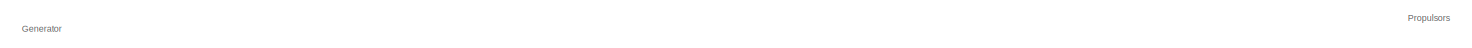
[diagram: root canvas - part 1/3, top left region]
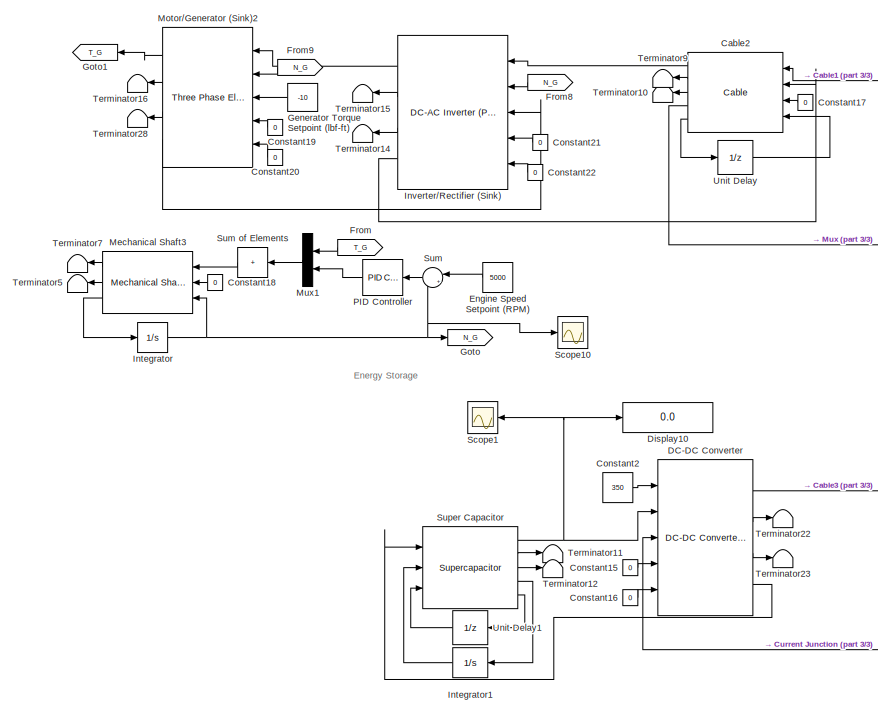
[diagram: root canvas - part 2/3, left side, full height]
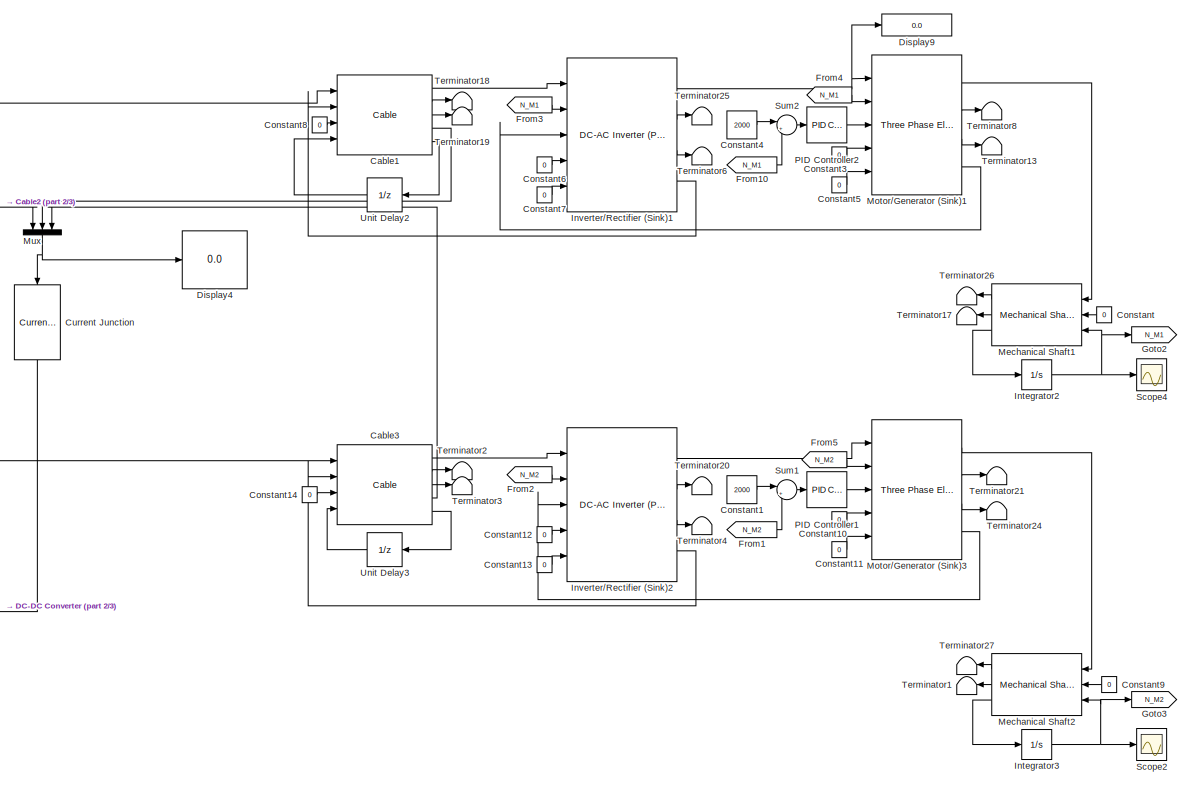
[diagram: root canvas - part 3/3, right side, full height]
MODEL slx_69a295819db7
KIND model
CONFIG AbsTol = auto
CONFIG EnableMultiTasking = off
CONFIG FixedStep = 0.02
CONFIG MaxStep = auto
CONFIG MinStep = auto
CONFIG RelTol = 1e-3
CONFIG SampleTimeConstraint = Unconstrained
CONFIG SolverName = FixedStepAuto
CONFIG StartTime = 0.0
CONFIG StopTime = 10
BLOCK [Reference] Cable1  REF=Lib_EMTAT/Components/Power Flow/Cable
  Ports = [4, 5]
  SourceBlock = Lib_EMTAT/Components/Power Flow/Cable
  SourceType = Cable
BLOCK [Reference] Cable2  REF=Lib_EMTAT/Components/Power Flow/Cable
  Ports = [4, 5]
  SourceBlock = Lib_EMTAT/Components/Power Flow/Cable
  SourceType = Cable
BLOCK [Reference] Cable3  REF=Lib_EMTAT/Components/Power Flow/Cable
  Ports = [4, 5]
  SourceBlock = Lib_EMTAT/Components/Power Flow/Cable
  SourceType = Cable
BLOCK [Constant] Constant
  Value = 0
BLOCK [Constant] Constant1
  Value = 2000
BLOCK [Constant] Constant10
  Value = 0
BLOCK [Constant] Constant11
  Value = 0
BLOCK [Constant] Constant12
  Value = 0
BLOCK [Constant] Constant13
  Value = 0
BLOCK [Constant] Constant14
  Value = 0
BLOCK [Constant] Constant15
  Value = 0
BLOCK [Constant] Constant16
  Value = 0
BLOCK [Constant] Constant17
  Value = 0
BLOCK [Constant] Constant18
  Value = 0
BLOCK [Constant] Constant19
  Value = 0
BLOCK [Constant] Constant2
  Value = 350
BLOCK [Constant] Constant20
  Value = 0
BLOCK [Constant] Constant21
  Value = 0
BLOCK [Constant] Constant22
  Value = 0
BLOCK [Constant] Constant3
  Value = 0
BLOCK [Constant] Constant4
  Value = 2000
BLOCK [Constant] Constant5
  Value = 0
BLOCK [Constant] Constant6
  Value = 0
BLOCK [Constant] Constant7
  Value = 0
BLOCK [Constant] Constant8
  Value = 0
BLOCK [Constant] Constant9
  Value = 0
BLOCK [Reference] Current Junction  REF=Lib_EMTAT/Components/Power Flow/Current Junction
  AttributesFormatString = Current Junction\nVersion: %<LibraryVersion>
  NameLocation = left
  Ports = [1, 1]
  SourceBlock = Lib_EMTAT/Components/Power Flow/Current Junction
  SourceType = Current Junction
BLOCK [Reference] DC-DC Converter  REF=Lib_EMTAT/Components/Power Flow/DC-DC Converter
(Power Loss Map)
(Set Output Voltage)
  Ports = [5, 4]
  SourceBlock = Lib_EMTAT/Components/Power Flow/DC-DC Converter\n(Power Loss Map)\n(Set Output Voltage)
  SourceType = DC-DC Converter (Power Loss Map) (Set Output Voltage)
BLOCK [Display] Display10
  Decimation = 1
  Ports = [1]
BLOCK [Display] Display4
  Decimation = 1
  Ports = [1]
BLOCK [Display] Display9
  Decimation = 1
  Ports = [1]
BLOCK [Constant] Engine Speed Setpoint (RPM)
  Value = 5000
BLOCK [From] From
  GotoTag = T_G
BLOCK [From] From1
  GotoTag = N_M2
BLOCK [From] From10
  GotoTag = N_M1
BLOCK [From] From2
  GotoTag = N_M2
BLOCK [From] From3
  GotoTag = N_M1
BLOCK [From] From4
  GotoTag = N_M1
BLOCK [From] From5
  GotoTag = N_M2
BLOCK [From] From8
  GotoTag = N_G
BLOCK [From] From9
  GotoTag = N_G
BLOCK [Constant] Generator Torque Setpoint (lbf-ft)
  Value = -10
BLOCK [Goto] Goto
  GotoTag = N_G
BLOCK [Goto] Goto1
  GotoTag = T_G
BLOCK [Goto] Goto2
  GotoTag = N_M1
BLOCK [Goto] Goto3
  GotoTag = N_M2
BLOCK [Integrator] Integrator
  InitialCondition = 5000
  Ports = [1, 1]
BLOCK [Integrator] Integrator1
  InitialCondition = 150
  Ports = [1, 1]
BLOCK [Integrator] Integrator2
  InitialCondition = 2000
  Ports = [1, 1]
BLOCK [Integrator] Integrator3
  InitialCondition = 2000
  Ports = [1, 1]
BLOCK [Reference] Inverter//Rectifier (Sink)  REF=Lib_EMTAT/Components/Power Flow/DC-AC Inverter (Power Loss Map)
  Ports = [5, 4]
  SourceBlock = Lib_EMTAT/Components/Power Flow/DC-AC Inverter (Power Loss Map)
  SourceType = DC-AC Inverter (Power Loss Map)
BLOCK [Reference] Inverter//Rectifier (Sink)1  REF=Lib_EMTAT/Components/Power Flow/DC-AC Inverter (Power Loss Map)
  Ports = [5, 4]
  SourceBlock = Lib_EMTAT/Components/Power Flow/DC-AC Inverter (Power Loss Map)
  SourceType = DC-AC Inverter (Power Loss Map)
BLOCK [Reference] Inverter//Rectifier (Sink)2  REF=Lib_EMTAT/Components/Power Flow/DC-AC Inverter (Power Loss Map)
  Ports = [5, 4]
  SourceBlock = Lib_EMTAT/Components/Power Flow/DC-AC Inverter (Power Loss Map)
  SourceType = DC-AC Inverter (Power Loss Map)
BLOCK [Reference] Mechanical Shaft1  REF=Lib_EMTAT/Components/Power Flow/Mechanical Shaft
  Ports = [3, 3]
  SourceBlock = Lib_EMTAT/Components/Power Flow/Mechanical Shaft
  SourceType = Mechanical Shaft
BLOCK [Reference] Mechanical Shaft2  REF=Lib_EMTAT/Components/Power Flow/Mechanical Shaft
  Ports = [3, 3]
  SourceBlock = Lib_EMTAT/Components/Power Flow/Mechanical Shaft
  SourceType = Mechanical Shaft
BLOCK [Reference] Mechanical Shaft3  REF=Lib_EMTAT/Components/Power Flow/Mechanical Shaft
  Ports = [3, 3]
  SourceBlock = Lib_EMTAT/Components/Power Flow/Mechanical Shaft
  SourceType = Mechanical Shaft
BLOCK [Reference] Motor//Generator (Sink)1  REF=Lib_EMTAT/Components/Power Flow/Three Phase Electric Machine
(Sink)
  Ports = [5, 4]
  SourceBlock = Lib_EMTAT/Components/Power Flow/Three Phase Electric Machine\n(Sink)
  SourceType = Three Phase Electric Machine (Sink)
BLOCK [Reference] Motor//Generator (Sink)2  REF=Lib_EMTAT/Components/Power Flow/Three Phase Electric Machine
(Sink)
  Ports = [5, 4]
  SourceBlock = Lib_EMTAT/Components/Power Flow/Three Phase Electric Machine\n(Sink)
  SourceType = Three Phase Electric Machine (Sink)
BLOCK [Reference] Motor//Generator (Sink)3  REF=Lib_EMTAT/Components/Power Flow/Three Phase Electric Machine
(Sink)
  Ports = [5, 4]
  SourceBlock = Lib_EMTAT/Components/Power Flow/Three Phase Electric Machine\n(Sink)
  SourceType = Three Phase Electric Machine (Sink)
BLOCK [Mux] Mux
  DisplayOption = bar
  Inputs = 3
  NameLocation = right
  Ports = [3, 1]
BLOCK [Mux] Mux1
  DisplayOption = bar
  Inputs = 2
  Ports = [2, 1]
BLOCK [Reference] PID Controller  REF=slpidlib/PID Controller
  Ports = [1, 1]
  SourceBlock = slpidlib/PID Controller
  SourceType = PID 1dof
BLOCK [Reference] PID Controller1  REF=slpidlib/PID Controller
  Ports = [1, 1]
  SourceBlock = slpidlib/PID Controller
  SourceType = PID 1dof
BLOCK [Reference] PID Controller2  REF=slpidlib/PID Controller
  Ports = [1, 1]
  SourceBlock = slpidlib/PID Controller
  SourceType = PID 1dof
BLOCK [Scope] Scope1
  Floating = off
  NumInputPorts = 1
  Ports = [1]
  ScopeSpecificationString = Simulink.scopes.TimeScopeBlockCfg('CurrentConfiguration', extmgr.ConfigurationSet(extmgr.Configuration('Core','General UI',true),extmgr.Configuration('Core','Source UI',true),extmgr.Configuration('Sources','WiredSimulink',true,'DataLoggingVariableName','ScopeData1'),extmgr.Configuration('Visuals','Time Domain',true,'SerializedDisplays',{struct('MinYLimReal','149.62129','MaxYLimReal','153.40837','Y...<+1421ch>
BLOCK [Scope] Scope10
  Floating = off
  NumInputPorts = 1
  Ports = [1]
  ScopeSpecificationString = Simulink.scopes.TimeScopeBlockCfg('CurrentConfiguration', extmgr.ConfigurationSet(extmgr.Configuration('Core','General UI',true),extmgr.Configuration('Core','Source UI',true),extmgr.Configuration('Sources','WiredSimulink',true,'DataLoggingVariableName','ScopeData3'),extmgr.Configuration('Visuals','Time Domain',true,'SerializedDisplays',{struct('MinYLimReal','3699.5365','MaxYLimReal','5144.49594','...<+1463ch>
BLOCK [Scope] Scope2
  Floating = off
  NumInputPorts = 1
  Ports = [1]
  ScopeSpecificationString = Simulink.scopes.TimeScopeBlockCfg('CurrentConfiguration', extmgr.ConfigurationSet(extmgr.Configuration('Core','General UI',true),extmgr.Configuration('Core','Source UI',true),extmgr.Configuration('Sources','WiredSimulink',true,'DataLoggingVariableName','ScopeData1'),extmgr.Configuration('Visuals','Time Domain',true,'SerializedDisplays',{struct('MinYLimReal','1826.60487','MaxYLimReal','2019.26613',...<+1468ch>
BLOCK [Scope] Scope4
  Floating = off
  NumInputPorts = 1
  Ports = [1]
  ScopeSpecificationString = Simulink.scopes.TimeScopeBlockCfg('CurrentConfiguration', extmgr.ConfigurationSet(extmgr.Configuration('Core','General UI',true),extmgr.Configuration('Core','Source UI',true),extmgr.Configuration('Sources','WiredSimulink',true,'DataLoggingVariableName','ScopeData2'),extmgr.Configuration('Visuals','Time Domain',true,'SerializedDisplays',{struct('MinYLimReal','-0.25055','MaxYLimReal','2.25498','YLab...<+1450ch>
BLOCK [Sum] Sum
  Inputs = |+-
  Ports = [2, 1]
BLOCK [Sum] Sum of Elements
  IconShape = rectangular
  Inputs = +
  Ports = [1, 1]
BLOCK [Sum] Sum1
  Inputs = |+-
  Ports = [2, 1]
BLOCK [Sum] Sum2
  Inputs = |+-
  Ports = [2, 1]
BLOCK [Reference] Super Capacitor  REF=Lib_EMTAT/Components/Power Flow/Supercapacitor
  Ports = [3, 5]
  SourceBlock = Lib_EMTAT/Components/Power Flow/Supercapacitor
  SourceType = Supercapacitor
BLOCK [Terminator] Terminator1
BLOCK [Terminator] Terminator10
BLOCK [Terminator] Terminator11
BLOCK [Terminator] Terminator12
BLOCK [Terminator] Terminator13
BLOCK [Terminator] Terminator14
BLOCK [Terminator] Terminator15
BLOCK [Terminator] Terminator16
BLOCK [Terminator] Terminator17
BLOCK [Terminator] Terminator18
BLOCK [Terminator] Terminator19
BLOCK [Terminator] Terminator2
BLOCK [Terminator] Terminator20
BLOCK [Terminator] Terminator21
BLOCK [Terminator] Terminator22
BLOCK [Terminator] Terminator23
BLOCK [Terminator] Terminator24
BLOCK [Terminator] Terminator25
BLOCK [Terminator] Terminator26
BLOCK [Terminator] Terminator27
BLOCK [Terminator] Terminator28
BLOCK [Terminator] Terminator3
BLOCK [Terminator] Terminator4
BLOCK [Terminator] Terminator5
BLOCK [Terminator] Terminator6
BLOCK [Terminator] Terminator7
BLOCK [Terminator] Terminator8
BLOCK [Terminator] Terminator9
BLOCK [UnitDelay] Unit Delay
  HasFrameUpgradeWarning = on
  SampleTime = -1
BLOCK [UnitDelay] Unit Delay1
  HasFrameUpgradeWarning = on
  SampleTime = -1
BLOCK [UnitDelay] Unit Delay2
  HasFrameUpgradeWarning = on
  SampleTime = -1
BLOCK [UnitDelay] Unit Delay3
  HasFrameUpgradeWarning = on
  SampleTime = -1
ANNOTATION (root): Energy Storage
ANNOTATION (root): Generator
ANNOTATION (root): Propulsors
LINE Cable1:1 -> Inverter//Rectifier (Sink)1:1
LINE Cable1:2 -> Terminator18:1
LINE Cable1:3 -> Terminator19:1
LINE Cable1:4 -> Mux:2
LINE Cable1:5 -> Unit Delay2:1
LINE Cable2:1 -> Inverter//Rectifier (Sink):1
LINE Cable2:2 -> Terminator9:1
LINE Cable2:3 -> Terminator10:1
LINE Cable2:4 -> Mux:1
LINE Cable2:5 -> Unit Delay:1
LINE Cable3:1 -> Inverter//Rectifier (Sink)2:1
LINE Cable3:2 -> Terminator2:1
LINE Cable3:3 -> Terminator3:1
LINE Cable3:4 -> Mux:3
LINE Cable3:5 -> Unit Delay3:1
LINE Constant10:1 -> Motor//Generator (Sink)3:4
LINE Constant11:1 -> Motor//Generator (Sink)3:5
LINE Constant12:1 -> Inverter//Rectifier (Sink)2:4
LINE Constant13:1 -> Inverter//Rectifier (Sink)2:5
LINE Constant14:1 -> Cable3:3
LINE Constant15:1 -> DC-DC Converter:4
LINE Constant16:1 -> DC-DC Converter:5
LINE Constant17:1 -> Cable2:3
LINE Constant18:1 -> Mechanical Shaft3:2
LINE Constant19:1 -> Motor//Generator (Sink)2:4
LINE Constant1:1 -> Sum1:1
LINE Constant20:1 -> Motor//Generator (Sink)2:5
LINE Constant21:1 -> Inverter//Rectifier (Sink):4
LINE Constant22:1 -> Inverter//Rectifier (Sink):5
LINE Constant2:1 -> DC-DC Converter:1
LINE Constant3:1 -> Motor//Generator (Sink)1:4
LINE Constant4:1 -> Sum2:1
LINE Constant5:1 -> Motor//Generator (Sink)1:5
LINE Constant6:1 -> Inverter//Rectifier (Sink)1:4
LINE Constant7:1 -> Inverter//Rectifier (Sink)1:5
LINE Constant8:1 -> Cable1:3
LINE Constant9:1 -> Mechanical Shaft2:2
LINE Constant:1 -> Mechanical Shaft1:2
LINE Current Junction:1 -> DC-DC Converter:3
NET DC-DC Converter:1 -> Cable1:1, Cable2:1, Cable3:1
LINE DC-DC Converter:2 -> Terminator22:1
LINE DC-DC Converter:3 -> Terminator23:1
LINE DC-DC Converter:4 -> Super Capacitor:1
LINE Engine Speed Setpoint (RPM):1 -> Sum:1
LINE From10:1 -> Sum2:2
LINE From1:1 -> Sum1:2
LINE From2:1 -> Inverter//Rectifier (Sink)2:2
LINE From3:1 -> Inverter//Rectifier (Sink)1:2
LINE From4:1 -> Motor//Generator (Sink)1:2
LINE From5:1 -> Motor//Generator (Sink)3:2
LINE From8:1 -> Inverter//Rectifier (Sink):2
LINE From9:1 -> Motor//Generator (Sink)2:2
LINE From:1 -> Mux1:1
LINE Generator Torque Setpoint (lbf-ft):1 -> Motor//Generator (Sink)2:3
LINE Integrator1:1 -> Super Capacitor:2
NET Integrator2:1 -> Goto2:1, Mechanical Shaft1:3, Scope4:1
NET Integrator3:1 -> Goto3:1, Mechanical Shaft2:3, Scope2:1
NET Integrator:1 -> Goto:1, Mechanical Shaft3:3, Scope10:1, Sum:2
NET Inverter//Rectifier (Sink)1:1 -> Display9:1, Motor//Generator (Sink)1:1
LINE Inverter//Rectifier (Sink)1:2 -> Terminator25:1
LINE Inverter//Rectifier (Sink)1:3 -> Terminator6:1
LINE Inverter//Rectifier (Sink)1:4 -> Cable1:2
LINE Inverter//Rectifier (Sink)2:1 -> Motor//Generator (Sink)3:1
LINE Inverter//Rectifier (Sink)2:2 -> Terminator20:1
LINE Inverter//Rectifier (Sink)2:3 -> Terminator4:1
LINE Inverter//Rectifier (Sink)2:4 -> Cable3:2
LINE Inverter//Rectifier (Sink):1 -> Motor//Generator (Sink)2:1
LINE Inverter//Rectifier (Sink):2 -> Terminator15:1
LINE Inverter//Rectifier (Sink):3 -> Terminator14:1
LINE Inverter//Rectifier (Sink):4 -> Cable2:2
LINE Mechanical Shaft1:1 -> Terminator26:1
LINE Mechanical Shaft1:2 -> Terminator17:1
LINE Mechanical Shaft1:3 -> Integrator2:1
LINE Mechanical Shaft2:1 -> Terminator27:1
LINE Mechanical Shaft2:2 -> Terminator1:1
LINE Mechanical Shaft2:3 -> Integrator3:1
LINE Mechanical Shaft3:1 -> Terminator7:1
LINE Mechanical Shaft3:2 -> Terminator5:1
LINE Mechanical Shaft3:3 -> Integrator:1
LINE Motor//Generator (Sink)1:1 -> Mechanical Shaft1:1
LINE Motor//Generator (Sink)1:2 -> Terminator8:1
LINE Motor//Generator (Sink)1:3 -> Terminator13:1
LINE Motor//Generator (Sink)1:4 -> Inverter//Rectifier (Sink)1:3
LINE Motor//Generator (Sink)2:1 -> Goto1:1
LINE Motor//Generator (Sink)2:2 -> Terminator16:1
LINE Motor//Generator (Sink)2:3 -> Terminator28:1
LINE Motor//Generator (Sink)2:4 -> Inverter//Rectifier (Sink):3
LINE Motor//Generator (Sink)3:1 -> Mechanical Shaft2:1
LINE Motor//Generator (Sink)3:2 -> Terminator21:1
LINE Motor//Generator (Sink)3:3 -> Terminator24:1
LINE Motor//Generator (Sink)3:4 -> Inverter//Rectifier (Sink)2:3
LINE Mux1:1 -> Sum of Elements:1
NET Mux:1 -> Current Junction:1, Display4:1
LINE PID Controller1:1 -> Motor//Generator (Sink)3:3
LINE PID Controller2:1 -> Motor//Generator (Sink)1:3
LINE PID Controller:1 -> Mux1:2
LINE Sum of Elements:1 -> Mechanical Shaft3:1
LINE Sum1:1 -> PID Controller1:1
LINE Sum2:1 -> PID Controller2:1
LINE Sum:1 -> PID Controller:1
NET Super Capacitor:1 -> DC-DC Converter:2, Display10:1, Scope1:1
LINE Super Capacitor:2 -> Terminator11:1
LINE Super Capacitor:3 -> Terminator12:1
LINE Super Capacitor:4 -> Integrator1:1
LINE Super Capacitor:5 -> Unit Delay1:1
LINE Unit Delay1:1 -> Super Capacitor:3
LINE Unit Delay2:1 -> Cable1:4
LINE Unit Delay3:1 -> Cable3:4
LINE Unit Delay:1 -> Cable2:4
note: NET lines group one-source signal fan-out (src -> all destinations, sorted); 1:1 wires keep LINE
